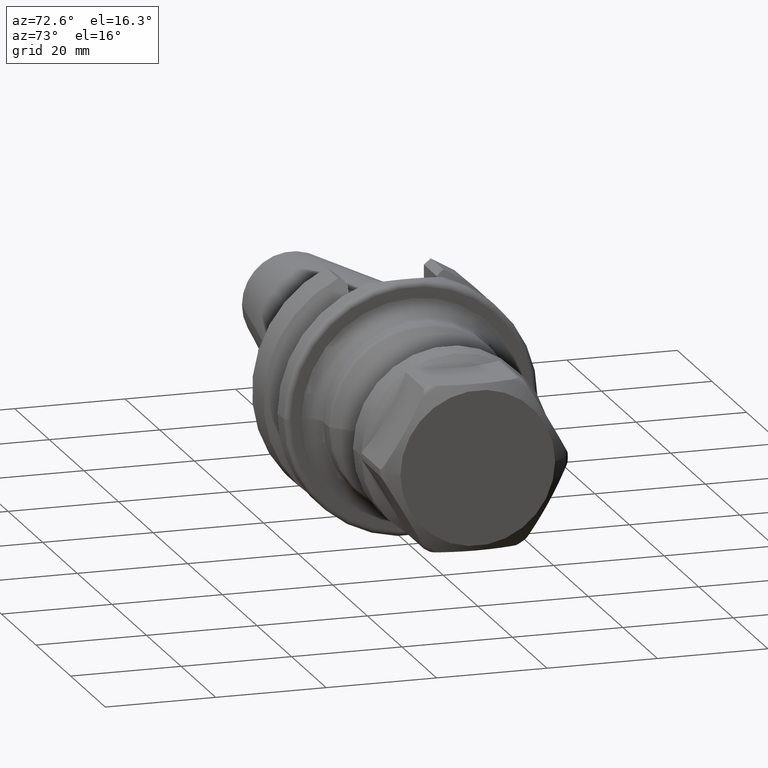
[diagram: clean part render]
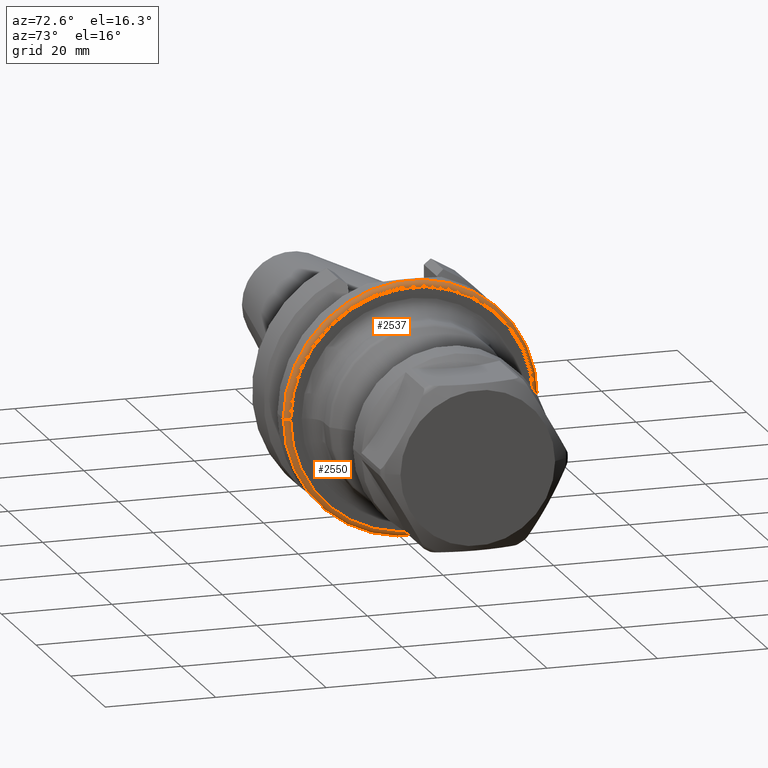
[diagram: same view with one multi-face feature highlighted, each face labeled with its STEP entity id]
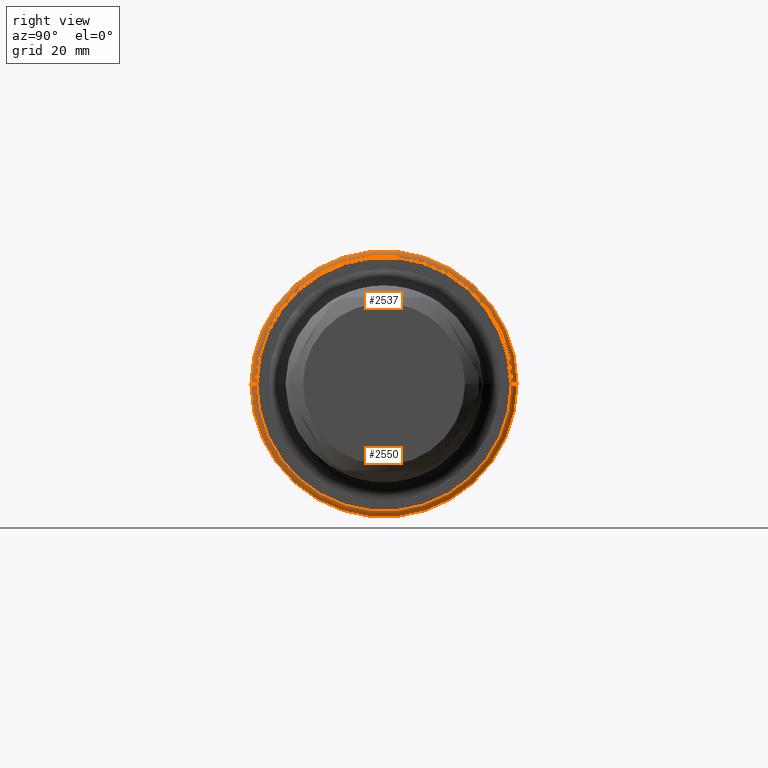
[diagram: same view with one multi-face feature highlighted, each face labeled with its STEP entity id]
A machine part, auxiliary view. The highlighted faces form ONE feature: a constant-radius fillet chain: 2 tangent blend faces with common blend radius 1 mm. The faces share edges in the B-rep.
A second angle (right view) of the same feature is appended — it is thin or edge-on in the first view.
Their STEP definitions:
[1] entity #2537 (Torus):
#778=CARTESIAN_POINT('',(2.1E1,0.E0,0.E0));
#779=DIRECTION('',(1.E0,0.E0,0.E0));
#780=DIRECTION('',(0.E0,1.E0,0.E0));
#781=AXIS2_PLACEMENT_3D('',#778,#779,#780);
#802=CARTESIAN_POINT('',(2.2E1,0.E0,0.E0));
#803=DIRECTION('',(1.E0,0.E0,0.E0));
#804=DIRECTION('',(0.E0,1.E0,0.E0));
#805=AXIS2_PLACEMENT_3D('',#802,#803,#804);
#807=CARTESIAN_POINT('',(2.1E1,2.199E1,0.E0));
#808=DIRECTION('',(0.E0,0.E0,1.E0));
#809=DIRECTION('',(1.E0,0.E0,0.E0));
#810=AXIS2_PLACEMENT_3D('',#807,#808,#809);
#812=CARTESIAN_POINT('',(2.1E1,-2.199E1,0.E0));
#813=DIRECTION('',(0.E0,0.E0,-1.E0));
#814=DIRECTION('',(1.E0,0.E0,0.E0));
#815=AXIS2_PLACEMENT_3D('',#812,#813,#814);
#1276=CARTESIAN_POINT('',(2.1E1,2.299E1,0.E0));
#1277=VERTEX_POINT('',#1276);
#1278=CARTESIAN_POINT('',(2.1E1,-2.299E1,0.E0));
#1279=VERTEX_POINT('',#1278);
#1346=CARTESIAN_POINT('',(2.2E1,2.199E1,0.E0));
#1347=VERTEX_POINT('',#1346);
#1348=CARTESIAN_POINT('',(2.2E1,-2.199E1,0.E0));
#1349=VERTEX_POINT('',#1348);
#2523=CARTESIAN_POINT('',(2.1E1,0.E0,0.E0));
#2524=DIRECTION('',(1.E0,0.E0,0.E0));
#2525=DIRECTION('',(0.E0,-1.E0,0.E0));
#2526=AXIS2_PLACEMENT_3D('',#2523,#2524,#2525);
#2527=TOROIDAL_SURFACE('',#2526,2.199E1,1.E0);
#2529=ORIENTED_EDGE('',*,*,#2528,.F.);
#2531=ORIENTED_EDGE('',*,*,#2530,.T.);
#2533=ORIENTED_EDGE('',*,*,#2532,.T.);
#2534=ORIENTED_EDGE('',*,*,#2514,.F.);
#2535=EDGE_LOOP('',(#2529,#2531,#2533,#2534));
#2536=FACE_OUTER_BOUND('',#2535,.F.);
#2537=ADVANCED_FACE('',(#2536),#2527,.T.);
#782=CIRCLE('',#781,2.299E1);
#806=CIRCLE('',#805,2.199E1);
#811=CIRCLE('',#810,1.E0);
#816=CIRCLE('',#815,1.E0);
#2514=EDGE_CURVE('',#1277,#1279,#782,.T.);
#2528=EDGE_CURVE('',#1347,#1277,#811,.T.);
#2530=EDGE_CURVE('',#1347,#1349,#806,.T.);
#2532=EDGE_CURVE('',#1349,#1279,#816,.T.);
[2] entity #2550 (Torus):
#235=CARTESIAN_POINT('',(2.1E1,0.E0,0.E0));
#236=DIRECTION('',(-1.E0,0.E0,0.E0));
#237=DIRECTION('',(0.E0,1.E0,0.E0));
#238=AXIS2_PLACEMENT_3D('',#235,#236,#237);
#807=CARTESIAN_POINT('',(2.1E1,2.199E1,0.E0));
#808=DIRECTION('',(0.E0,0.E0,1.E0));
#809=DIRECTION('',(1.E0,0.E0,0.E0));
#810=AXIS2_PLACEMENT_3D('',#807,#808,#809);
#812=CARTESIAN_POINT('',(2.1E1,-2.199E1,0.E0));
#813=DIRECTION('',(0.E0,0.E0,-1.E0));
#814=DIRECTION('',(1.E0,0.E0,0.E0));
#815=AXIS2_PLACEMENT_3D('',#812,#813,#814);
#817=CARTESIAN_POINT('',(2.2E1,0.E0,0.E0));
#818=DIRECTION('',(-1.E0,0.E0,0.E0));
#819=DIRECTION('',(0.E0,1.E0,0.E0));
#820=AXIS2_PLACEMENT_3D('',#817,#818,#819);
#1276=CARTESIAN_POINT('',(2.1E1,2.299E1,0.E0));
#1277=VERTEX_POINT('',#1276);
#1278=CARTESIAN_POINT('',(2.1E1,-2.299E1,0.E0));
#1279=VERTEX_POINT('',#1278);
#1346=CARTESIAN_POINT('',(2.2E1,2.199E1,0.E0));
#1347=VERTEX_POINT('',#1346);
#1348=CARTESIAN_POINT('',(2.2E1,-2.199E1,0.E0));
#1349=VERTEX_POINT('',#1348);
#2538=CARTESIAN_POINT('',(2.1E1,0.E0,0.E0));
#2539=DIRECTION('',(1.E0,0.E0,0.E0));
#2540=DIRECTION('',(0.E0,-1.E0,0.E0));
#2541=AXIS2_PLACEMENT_3D('',#2538,#2539,#2540);
#2542=TOROIDAL_SURFACE('',#2541,2.199E1,1.E0);
#2543=ORIENTED_EDGE('',*,*,#2528,.T.);
#2544=ORIENTED_EDGE('',*,*,#1782,.T.);
#2545=ORIENTED_EDGE('',*,*,#2532,.F.);
#2547=ORIENTED_EDGE('',*,*,#2546,.F.);
#2548=EDGE_LOOP('',(#2543,#2544,#2545,#2547));
#2549=FACE_OUTER_BOUND('',#2548,.F.);
#2550=ADVANCED_FACE('',(#2549),#2542,.T.);
#239=CIRCLE('',#238,2.299E1);
#811=CIRCLE('',#810,1.E0);
#816=CIRCLE('',#815,1.E0);
#821=CIRCLE('',#820,2.199E1);
#1782=EDGE_CURVE('',#1277,#1279,#239,.T.);
#2528=EDGE_CURVE('',#1347,#1277,#811,.T.);
#2532=EDGE_CURVE('',#1349,#1279,#816,.T.);
#2546=EDGE_CURVE('',#1347,#1349,#821,.T.);